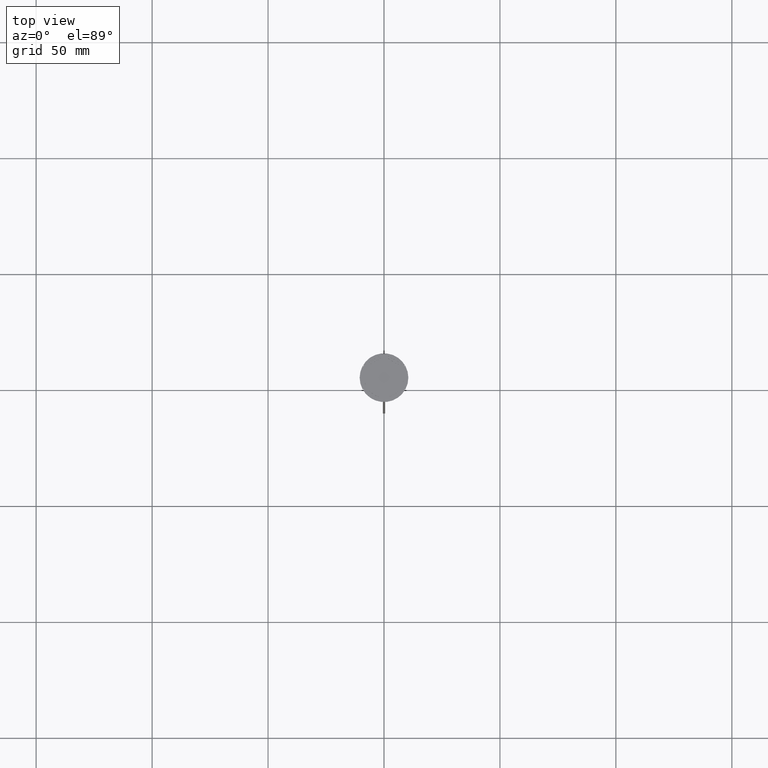
[diagram: clean part render]
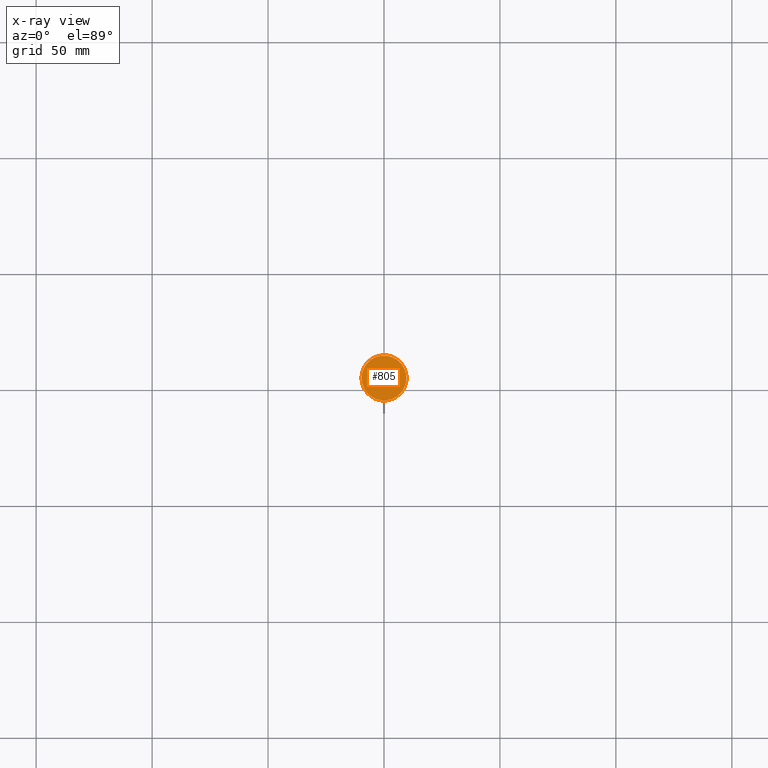
[diagram: x-ray — body ghosted, one internal face saturated and labeled with its STEP entity id]
A machine part, top view, then the same camera in x-ray: the body is ghosted and one INTERNAL B-rep face — a face not visible from any outside direction — is saturated and labeled: STEP entity #805.
In plain terms, the highlighted planar face has unit normal (0, 0, -1).
Its self-contained STEP definition (entity closure, byte-faithful):
#73 = DIRECTION ( 'NONE',  ( -1.000000000000000000, 0.000000000000000000, 0.000000000000000000 ) ) ;
#82 = AXIS2_PLACEMENT_3D ( 'NONE', #265, #2535, #73 ) ;
#109 = DIRECTION ( 'NONE',  ( -1.000000000000000000, 0.000000000000000000, 0.000000000000000000 ) ) ;
#225 = VERTEX_POINT ( 'NONE', #770 ) ;
#265 = CARTESIAN_POINT ( 'NONE',  ( 0.000000000000000000, 0.000000000000000000, -12.00000000000000000 ) ) ;
#331 = DIRECTION ( 'NONE',  ( -0.000000000000000000, -0.000000000000000000, 1.000000000000000000 ) ) ;
#521 = ORIENTED_EDGE ( 'NONE', *, *, #2418, .T. ) ;
#608 = CIRCLE ( 'NONE', #82, 9.700000000000002842 ) ;
#628 = EDGE_CURVE ( 'NONE', #2341, #225, #1323, .T. ) ;
#658 = EDGE_LOOP ( 'NONE', ( #521, #1037 ) ) ;
#770 = CARTESIAN_POINT ( 'NONE',  ( -9.700000000000002842, 0.000000000000000000, -12.00000000000000000 ) ) ;
#805 = ADVANCED_FACE ( 'NONE', ( #1733 ), #2084, .F. ) ;
#911 = DIRECTION ( 'NONE',  ( -1.000000000000000000, 0.000000000000000000, -0.000000000000000000 ) ) ;
#1037 = ORIENTED_EDGE ( 'NONE', *, *, #628, .T. ) ;
#1323 = CIRCLE ( 'NONE', #2245, 9.700000000000002842 ) ;
#1733 = FACE_OUTER_BOUND ( 'NONE', #658, .T. ) ;
#1818 = CARTESIAN_POINT ( 'NONE',  ( 0.000000000000000000, 0.000000000000000000, -12.00000000000000000 ) ) ;
#1928 = CARTESIAN_POINT ( 'NONE',  ( 9.700000000000002842, 1.206277097160143024E-15, -12.00000000000000000 ) ) ;
#1939 = CARTESIAN_POINT ( 'NONE',  ( 0.000000000000000000, 0.000000000000000000, -12.00000000000000000 ) ) ;
#2084 = PLANE ( 'NONE',  #2531 ) ;
#2245 = AXIS2_PLACEMENT_3D ( 'NONE', #1818, #331, #109 ) ;
#2334 = DIRECTION ( 'NONE',  ( 0.000000000000000000, 0.000000000000000000, -1.000000000000000000 ) ) ;
#2341 = VERTEX_POINT ( 'NONE', #1928 ) ;
#2418 = EDGE_CURVE ( 'NONE', #225, #2341, #608, .T. ) ;
#2531 = AXIS2_PLACEMENT_3D ( 'NONE', #1939, #2334, #911 ) ;
#2535 = DIRECTION ( 'NONE',  ( -0.000000000000000000, -0.000000000000000000, 1.000000000000000000 ) ) ;